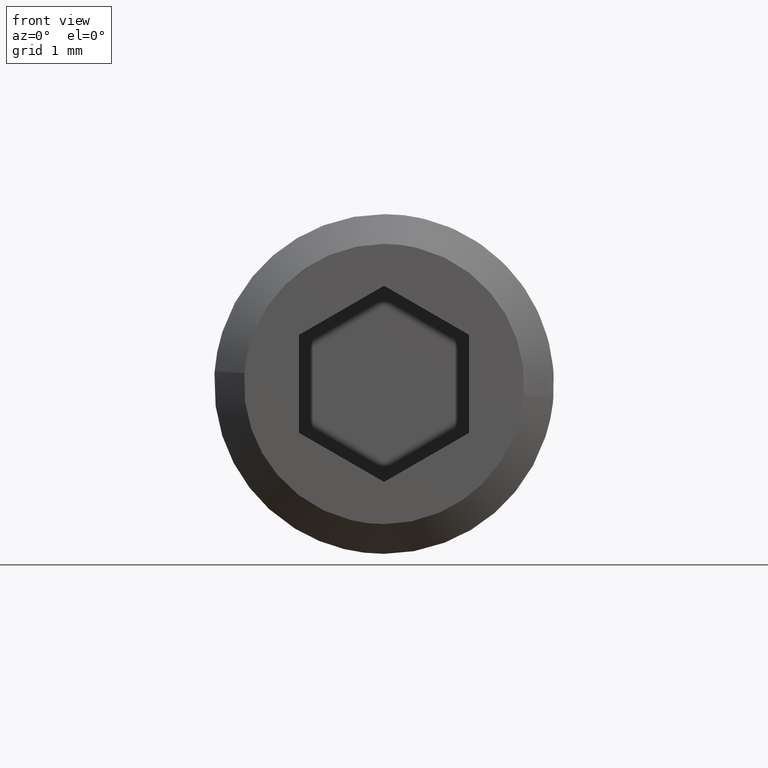
[diagram: clean part render]
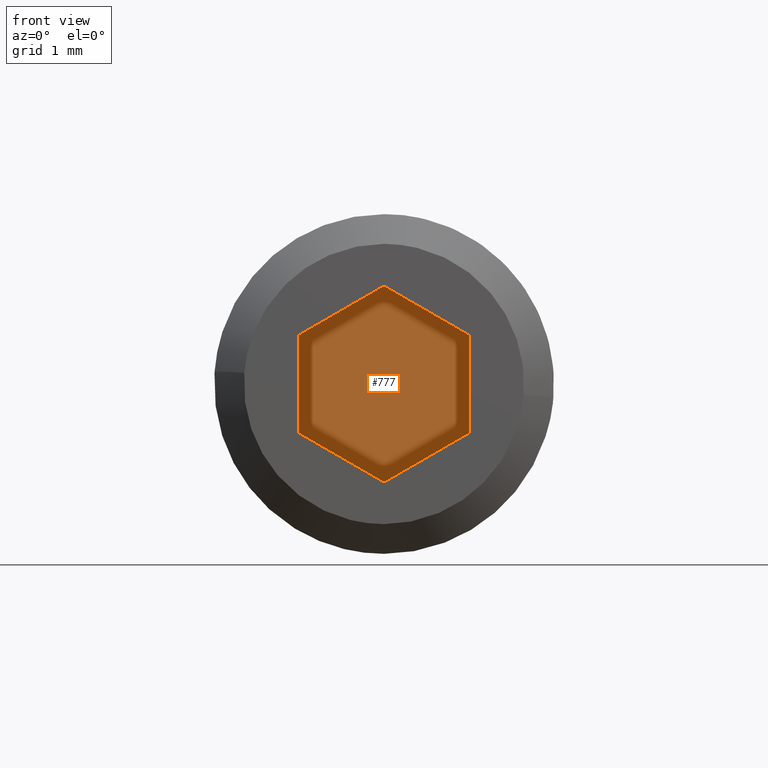
[diagram: same view with one face highlighted and labeled with its STEP entity id]
A machine part, front view. The second image highlights one B-rep face of the part: STEP entity #777.
In plain terms, the highlighted face is a freeform B-spline surface patch.
Its self-contained STEP definition (entity closure, byte-faithful):
#728=CARTESIAN_POINT('',(-1.099899996123612,-3.500000000000000,1.270055625423931));
#729=CARTESIAN_POINT('',(1.099900049767792,-3.500000000000000,1.270055625423931));
#730=CARTESIAN_POINT('',(-1.099899996123612,-3.500000000000000,-1.270055687366920));
#731=CARTESIAN_POINT('',(1.099900049767792,-3.500000000000000,-1.270055687366920));
#732=B_SPLINE_SURFACE_WITH_KNOTS('',1,1,((#728,#730),(#729,#731)),.UNSPECIFIED.,.F.,.F.,.U.,(2,2),(2,2),(0.0,2.199800045891404),(0.0,2.540111312790851),.UNSPECIFIED.);
#733=CARTESIAN_POINT('',(0.0,-3.499999999999950,1.154701000000000));
#734=VERTEX_POINT('',#733);
#735=CARTESIAN_POINT('',(-1.0,-3.499999999999950,0.577350000000000));
#736=VERTEX_POINT('',#735);
#737=CARTESIAN_POINT('',(0.0,-3.499999999999950,1.154701000000000));
#738=CARTESIAN_POINT('',(-1.0,-3.499999999999950,0.577350000000000));
#739=QUASI_UNIFORM_CURVE('',1,(#737,#738),.UNSPECIFIED.,.F.,.U.);
#740=EDGE_CURVE('',#734,#736,#739,.T.);
#741=ORIENTED_EDGE('',*,*,#740,.T.);
#742=CARTESIAN_POINT('',(-1.0,-3.499999999999950,-0.577350000000017));
#743=VERTEX_POINT('',#742);
#744=CARTESIAN_POINT('',(-1.0,-3.499999999999950,0.577350000000000));
#745=CARTESIAN_POINT('',(-1.0,-3.499999999999950,-0.577350000000017));
#746=QUASI_UNIFORM_CURVE('',1,(#744,#745),.UNSPECIFIED.,.F.,.U.);
#747=EDGE_CURVE('',#736,#743,#746,.T.);
#748=ORIENTED_EDGE('',*,*,#747,.T.);
#749=CARTESIAN_POINT('',(0.0,-3.499999999999950,-1.154701000000000));
#750=VERTEX_POINT('',#749);
#751=CARTESIAN_POINT('',(-1.0,-3.499999999999950,-0.577350000000017));
#752=CARTESIAN_POINT('',(0.0,-3.499999999999950,-1.154701000000000));
#753=QUASI_UNIFORM_CURVE('',1,(#751,#752),.UNSPECIFIED.,.F.,.U.);
#754=EDGE_CURVE('',#743,#750,#753,.T.);
#755=ORIENTED_EDGE('',*,*,#754,.T.);
#756=CARTESIAN_POINT('',(1.0,-3.499999999999950,-0.577350000000017));
#757=VERTEX_POINT('',#756);
#758=CARTESIAN_POINT('',(0.0,-3.499999999999950,-1.154701000000000));
#759=CARTESIAN_POINT('',(1.0,-3.499999999999950,-0.577350000000017));
#760=QUASI_UNIFORM_CURVE('',1,(#758,#759),.UNSPECIFIED.,.F.,.U.);
#761=EDGE_CURVE('',#750,#757,#760,.T.);
#762=ORIENTED_EDGE('',*,*,#761,.T.);
#763=CARTESIAN_POINT('',(1.0,-3.499999999999950,0.577350000000000));
#764=VERTEX_POINT('',#763);
#765=CARTESIAN_POINT('',(1.0,-3.499999999999950,-0.577350000000017));
#766=CARTESIAN_POINT('',(1.0,-3.499999999999950,0.577350000000000));
#767=QUASI_UNIFORM_CURVE('',1,(#765,#766),.UNSPECIFIED.,.F.,.U.);
#768=EDGE_CURVE('',#757,#764,#767,.T.);
#769=ORIENTED_EDGE('',*,*,#768,.T.);
#770=CARTESIAN_POINT('',(1.0,-3.499999999999950,0.577350000000000));
#771=CARTESIAN_POINT('',(0.0,-3.499999999999950,1.154701000000000));
#772=QUASI_UNIFORM_CURVE('',1,(#770,#771),.UNSPECIFIED.,.F.,.U.);
#773=EDGE_CURVE('',#764,#734,#772,.T.);
#774=ORIENTED_EDGE('',*,*,#773,.T.);
#775=EDGE_LOOP('',(#741,#748,#755,#762,#769,#774));
#776=FACE_OUTER_BOUND('',#775,.T.);
#777=ADVANCED_FACE('',(#776),#732,.F.);